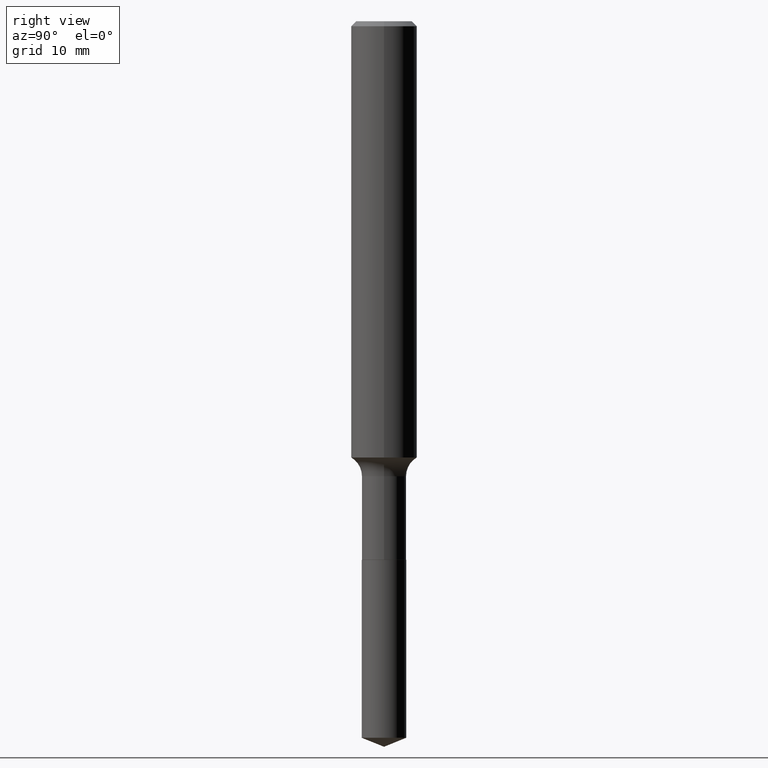
[diagram: clean part render]
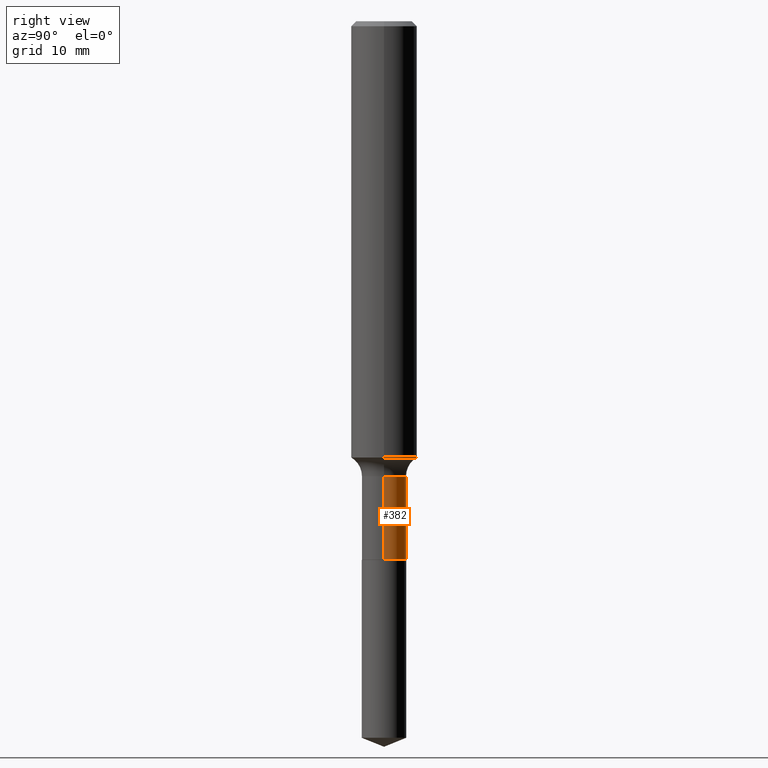
[diagram: same view with one face highlighted and labeled with its STEP entity id]
A machine part, right view. The second image highlights one B-rep face of the part: STEP entity #382.
In plain terms, the highlighted cylindrical surface (edge-blend (fillet) strip) has radius 2.0193 mm, axis along (-0, 0, 1).
Its self-contained STEP definition (entity closure, byte-faithful):
#3 = CARTESIAN_POINT ( 'NONE',  ( 0.000000000000000000, 0.000000000000000000, 0.000000000000000000 ) ) ;
#5 = LINE ( 'NONE', #34, #167 ) ;
#13 = VERTEX_POINT ( 'NONE', #149 ) ;
#23 = AXIS2_PLACEMENT_3D ( 'NONE', #3, #243, #118 ) ;
#34 = CARTESIAN_POINT ( 'NONE',  ( 0.07949999999999998734, -5.551455328760581522E-16, 3.876560536757768171E-30 ) ) ;
#41 = CARTESIAN_POINT ( 'NONE',  ( 4.716331139608654438E-29, -6.733670910092890989E-15, -1.928600000000000092 ) ) ;
#48 = EDGE_LOOP ( 'NONE', ( #98, #285, #226, #60 ) ) ;
#60 = ORIENTED_EDGE ( 'NONE', *, *, #439, .F. ) ;
#93 = AXIS2_PLACEMENT_3D ( 'NONE', #444, #447, #481 ) ;
#98 = ORIENTED_EDGE ( 'NONE', *, *, #420, .T. ) ;
#118 = DIRECTION ( 'NONE',  ( 1.000000000000000000, -6.982962677686267499E-15, 4.876176775795935793E-29 ) ) ;
#149 = CARTESIAN_POINT ( 'NONE',  ( 0.07950000000000000122, -7.288816442968948846E-15, -1.928600000000000092 ) ) ;
#160 = DIRECTION ( 'NONE',  ( 1.000000000000000000, -6.982962677686265922E-15, 0.000000000000000000 ) ) ;
#167 = VECTOR ( 'NONE', #418, 39.37007874015748143 ) ;
#200 = DIRECTION ( 'NONE',  ( -2.445468806185136597E-29, 3.491481338843145583E-15, 1.000000000000000000 ) ) ;
#210 = CARTESIAN_POINT ( 'NONE',  ( -0.07949999999999998734, 5.648814749292795578E-16, -3.910553396752649427E-30 ) ) ;
#226 = ORIENTED_EDGE ( 'NONE', *, *, #395, .F. ) ;
#243 = DIRECTION ( 'NONE',  ( -2.445468806185136597E-29, 3.491481338843145583E-15, 1.000000000000000000 ) ) ;
#245 = CARTESIAN_POINT ( 'NONE',  ( -0.07949999999999995959, -5.646812975006561157E-15, -1.629599999999999715 ) ) ;
#267 = VERTEX_POINT ( 'NONE', #245 ) ;
#270 = CARTESIAN_POINT ( 'NONE',  ( 0.07949999999999995959, -6.244863522654847902E-15, -1.629599999999999715 ) ) ;
#285 = ORIENTED_EDGE ( 'NONE', *, *, #306, .T. ) ;
#291 = VERTEX_POINT ( 'NONE', #376 ) ;
#302 = AXIS2_PLACEMENT_3D ( 'NONE', #41, #200, #160 ) ;
#306 = EDGE_CURVE ( 'NONE', #291, #267, #427, .T. ) ;
#317 = FACE_OUTER_BOUND ( 'NONE', #48, .T. ) ;
#376 = CARTESIAN_POINT ( 'NONE',  ( -0.07950000000000000122, -5.646812975006561157E-15, -1.928600000000000092 ) ) ;
#382 = ADVANCED_FACE ( 'NONE', ( #317 ), #384, .T. ) ;
#384 = CYLINDRICAL_SURFACE ( 'NONE', #23, 0.07949999999999998734 ) ;
#395 = EDGE_CURVE ( 'NONE', #440, #267, #432, .T. ) ;
#418 = DIRECTION ( 'NONE',  ( -2.445468806185136877E-29, 3.491481338843145188E-15, 1.000000000000000000 ) ) ;
#420 = EDGE_CURVE ( 'NONE', #13, #291, #450, .T. ) ;
#427 = LINE ( 'NONE', #210, #456 ) ;
#432 = CIRCLE ( 'NONE', #93, 0.07949999999999995959 ) ;
#437 = DIRECTION ( 'NONE',  ( -2.445468806185136877E-29, 3.491481338843145188E-15, 1.000000000000000000 ) ) ;
#439 = EDGE_CURVE ( 'NONE', #13, #440, #5, .T. ) ;
#440 = VERTEX_POINT ( 'NONE', #270 ) ;
#444 = CARTESIAN_POINT ( 'NONE',  ( 3.985135966559298165E-29, -5.689717989778789257E-15, -1.629599999999999715 ) ) ;
#447 = DIRECTION ( 'NONE',  ( -2.445468806185136597E-29, 3.491481338843145583E-15, 1.000000000000000000 ) ) ;
#450 = CIRCLE ( 'NONE', #302, 0.07950000000000000122 ) ;
#456 = VECTOR ( 'NONE', #437, 39.37007874015748143 ) ;
#481 = DIRECTION ( 'NONE',  ( 1.000000000000000000, -6.982962677686269866E-15, 0.000000000000000000 ) ) ;